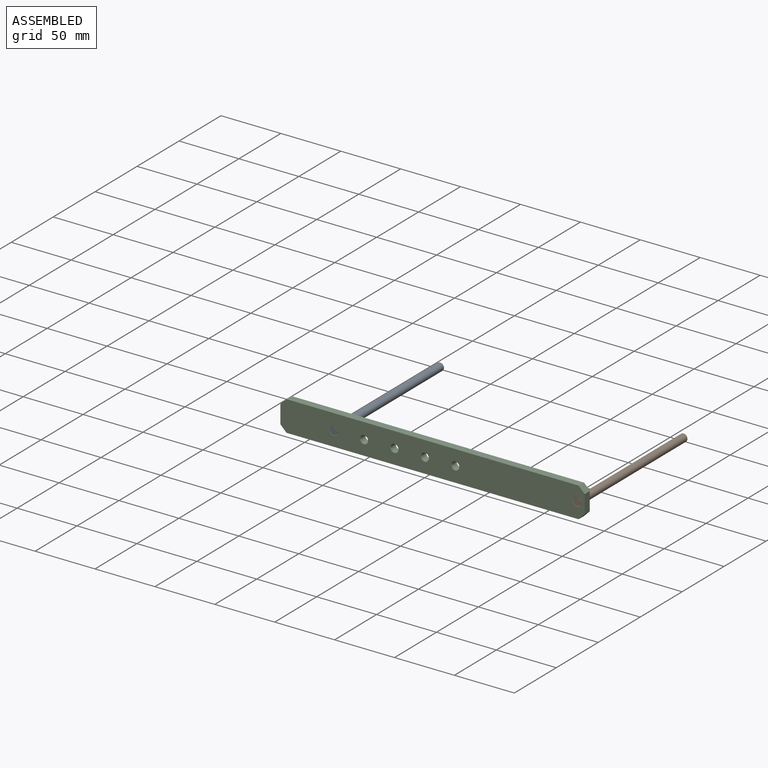
[diagram: assembled view]
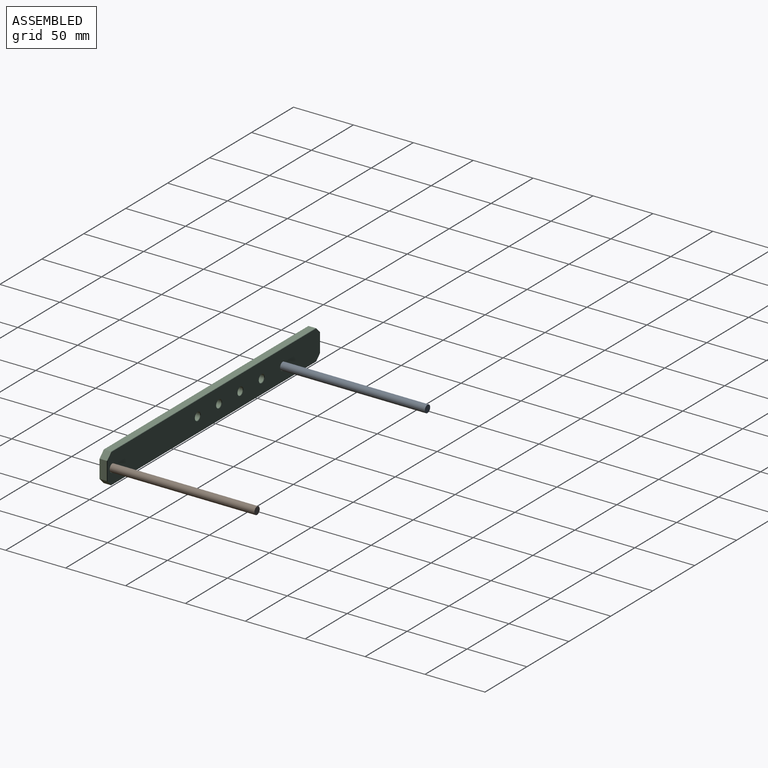
[diagram: assembled view, second angle]
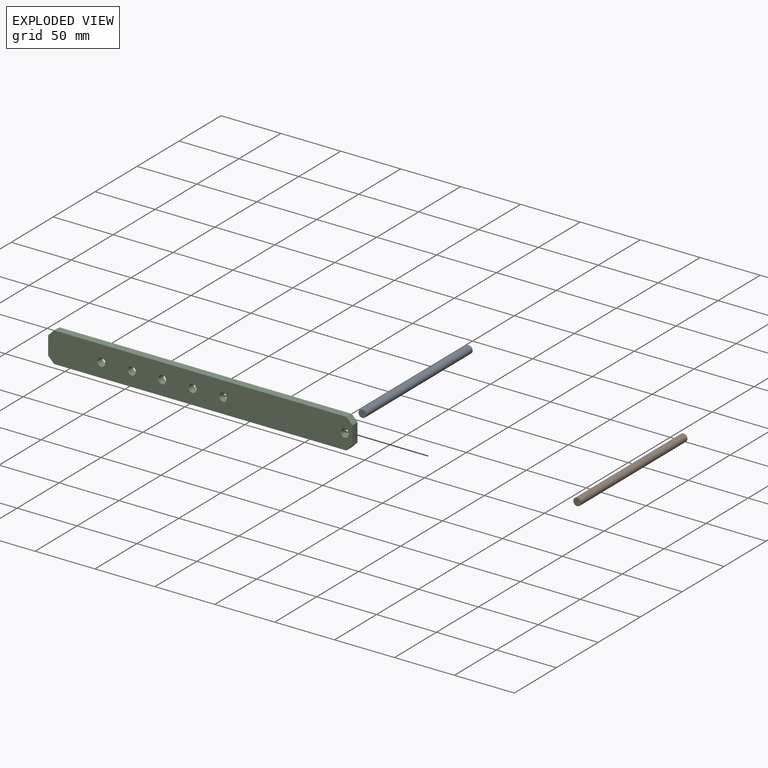
[diagram: exploded view]
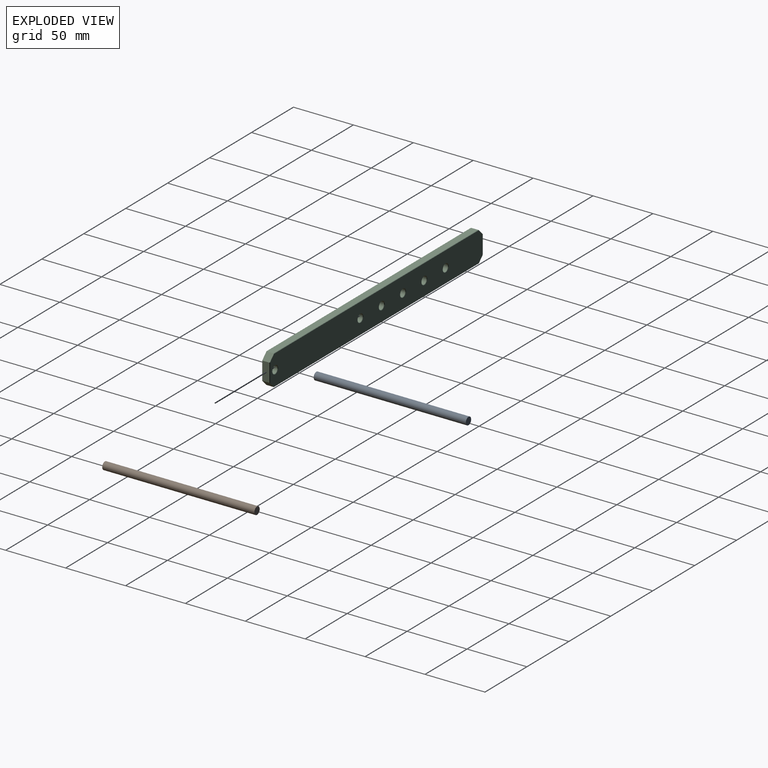
[diagram: exploded view, second angle]
ASSEMBLY  parts=3 mates=2
PART A: 3 faces, bbox 6.4x127x6.4 mm
  f0: cylinder r=3.17mm len=127mm, axis (0,1,0), area 2533.5mm2, adj f1,f2
  f1: plane 6.35x6.35mm, normal (0,-1,0), area 31.7mm2, adj f0
  f2: plane 6.35x6.35mm, normal (0,1,0), area 31.7mm2, adj f0
PART B: same geometry as A
PART C: 32 faces, bbox 254x6.4x25.4 mm
  f0: plane 15.24x6.1mm, normal (1,0,0), area 92.9mm2, adj f10,f15,f29,f30
  f1: plane 243.84x6.1mm, normal (0,0,1), area 1486.4mm2, adj f10,f17,f30,f31
  f2: plane 15.24x6.1mm, normal (-1,0,0), area 92.9mm2, adj f10,f18,f28,f31
  f3: cylinder r=3.17mm len=6.35mm, axis (0,1,0), area 116.5mm2, adj f21,f22
  f4: cylinder r=3.17mm len=6.35mm, axis (0,1,0), area 116.5mm2, adj f20,f23
  f5: cylinder r=3.17mm len=6.35mm, axis (0,1,0), area 116.5mm2, adj f19,f24
  f6: cylinder r=3.17mm len=6.35mm, axis (0,1,0), area 116.5mm2, adj f14,f25
  f7: cylinder r=3.17mm len=6.35mm, axis (0,1,0), area 116.5mm2, adj f13,f26
  f8: cylinder r=3.17mm len=6.35mm, axis (0,1,0), area 116.5mm2, adj f12,f27
  f9: plane 243.84x6.1mm, normal (0,0,-1), area 1486.4mm2, adj f10,f16,f28,f29
  f10: plane 254x25.4mm, normal (0,-1,0), area 6178.4mm2, adj f0,f1,f2,f9,f22,f23,f24,f25
  f11: plane 253.49x24.89mm, normal (0,1,0), area 6046.5mm2, adj f12,f13,f14,f15,f16,f17,f18,f19
  f12: cone r=3.43mm half-angle=45deg, axis (0,1,0), area 7.5mm2, adj f8,f11
  f13: cone r=3.43mm half-angle=45deg, axis (0,1,0), area 7.5mm2, adj f7,f11
  f14: cone r=3.43mm half-angle=45deg, axis (0,1,0), area 7.5mm2, adj f6,f11
  f15: plane 15.75x0.25mm, normal (0.71,0.71,0), area 5.6mm2, adj f0,f11,f29,f30
  f16: plane 244.35x0.25mm, normal (0,0.71,-0.71), area 87.7mm2, adj f9,f11,f28,f29
  f17: plane 244.35x0.25mm, normal (0,0.71,0.71), area 87.7mm2, adj f1,f11,f30,f31
  f18: plane 15.75x0.25mm, normal (-0.71,0.71,0), area 5.6mm2, adj f2,f11,f28,f31
  f19: cone r=3.43mm half-angle=45deg, axis (0,1,0), area 7.5mm2, adj f5,f11
  f20: cone r=3.43mm half-angle=45deg, axis (0,1,0), area 7.5mm2, adj f4,f11
  f21: cone r=3.43mm half-angle=45deg, axis (0,1,0), area 7.5mm2, adj f3,f11
  f22: cone r=3.17mm half-angle=45deg, axis (0,-1,0), area 7.5mm2, adj f3,f10
  f23: cone r=3.17mm half-angle=45deg, axis (0,-1,0), area 7.5mm2, adj f4,f10
  f24: cone r=3.17mm half-angle=45deg, axis (0,-1,0), area 7.5mm2, adj f5,f10
  f25: cone r=3.17mm half-angle=45deg, axis (0,-1,0), area 7.5mm2, adj f6,f10
  f26: cone r=3.17mm half-angle=45deg, axis (0,-1,0), area 7.5mm2, adj f7,f10
  f27: cone r=3.17mm half-angle=45deg, axis (0,-1,0), area 7.5mm2, adj f8,f10
  f28: plane 6.35x5.08mm, normal (-0.71,0,-0.71), area 45.5mm2, adj f2,f9,f10,f11,f16,f18
  f29: plane 6.35x5.08mm, normal (0.71,0,-0.71), area 45.5mm2, adj f0,f9,f10,f11,f15,f16
  f30: plane 6.35x5.08mm, normal (0.71,0,0.71), area 45.5mm2, adj f0,f1,f10,f11,f15,f17
  f31: plane 6.35x5.08mm, normal (-0.71,0,0.71), area 45.5mm2, adj f1,f2,f10,f11,f17,f18
PLACE A t=(-74.4,124.93,-13.07)mm
PLACE B t=(128.8,124.93,-12.24)mm
PLACE C t=(8.15,4.28,-12.24)mm
MATE fastened B.f0 <-> C.f3  axis (0,-1,0) through (128.8,-2.07,-12.24)mm
MATE fastened A.f0 <-> C.f8  axis (0,1,0) through (-74.4,-2.07,-13.07)mm
